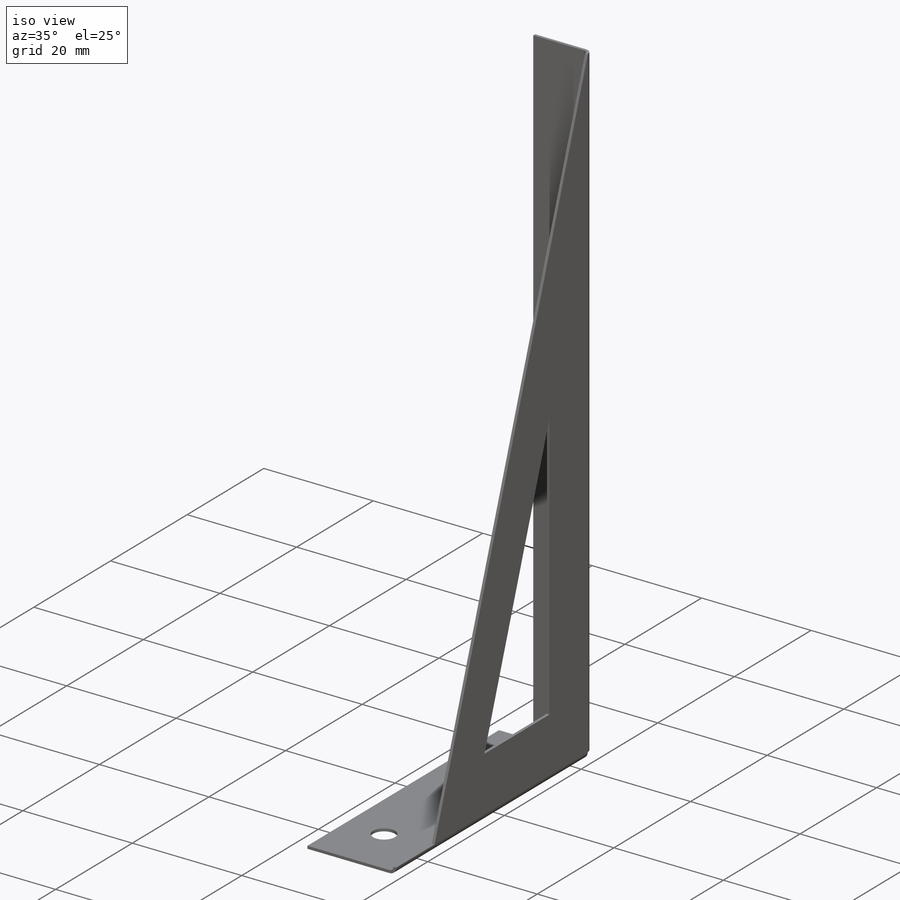
[diagram: iso view]
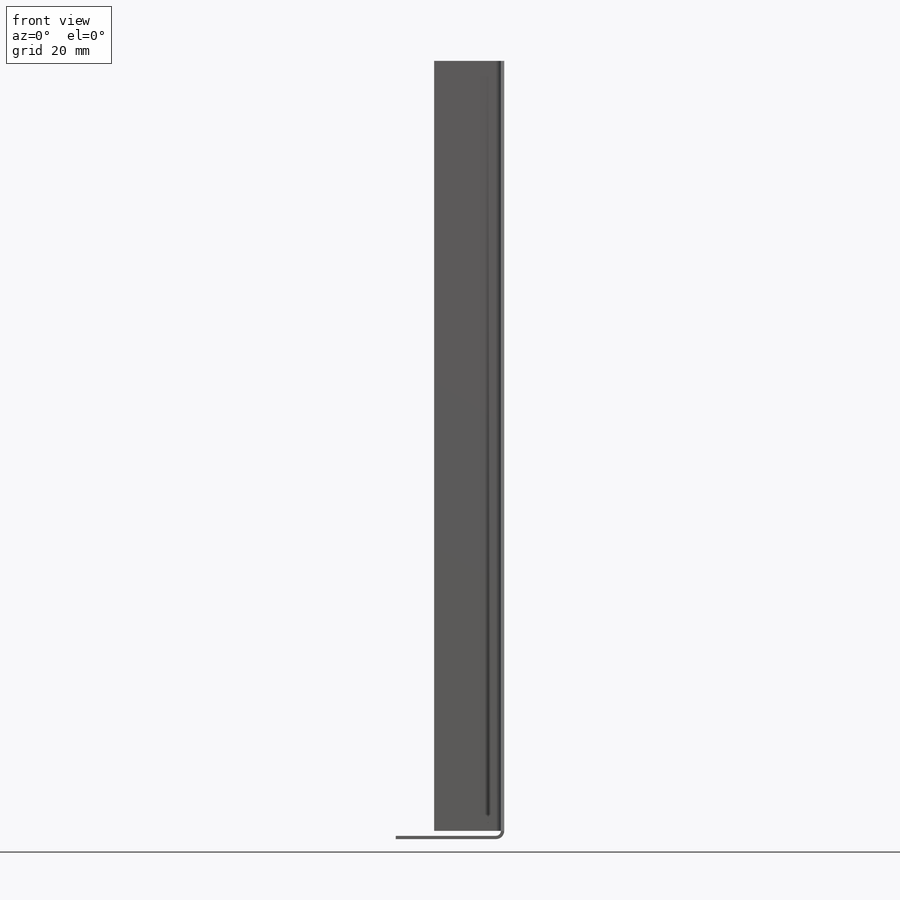
[diagram: front view]
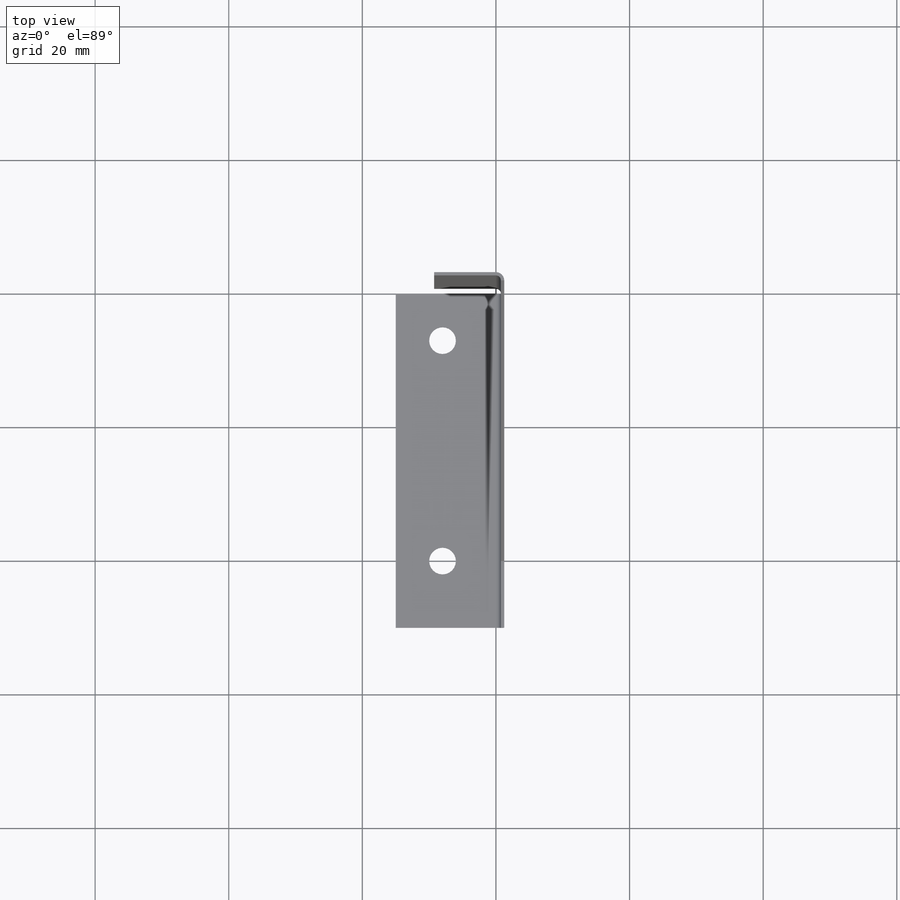
[diagram: top view]
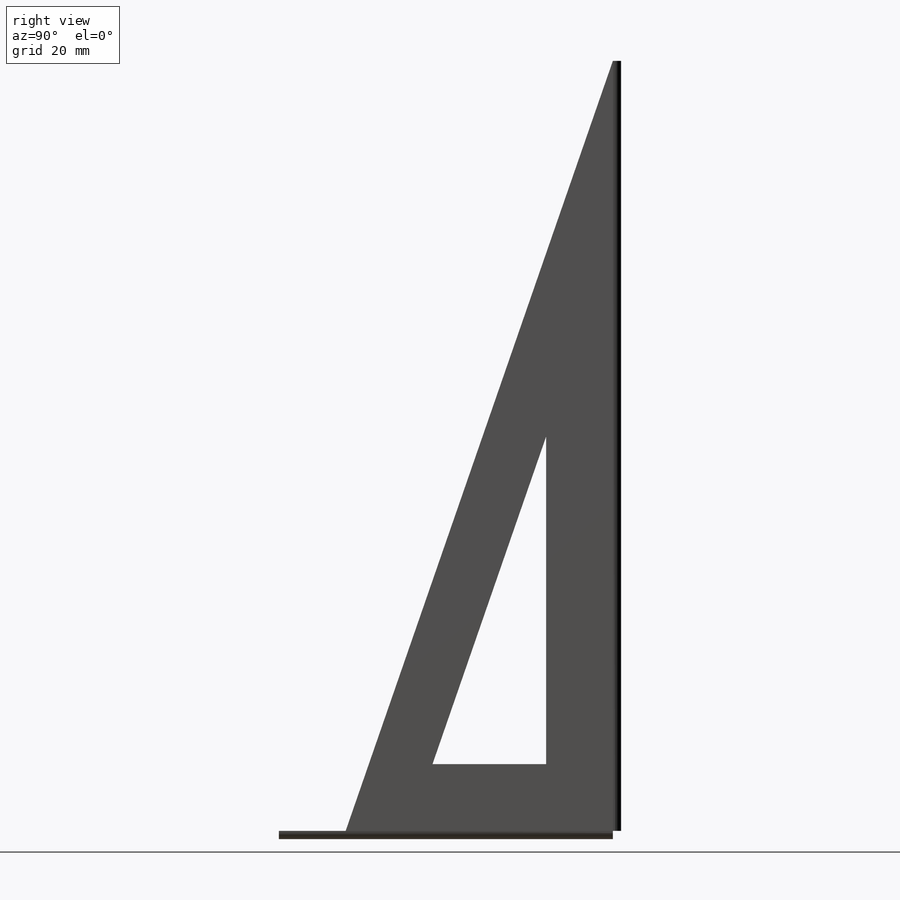
[diagram: right view]
SOLIDWORKS PART (.sldprt)
format: sldprt  version: not decoded by parser v0  size: 238,080 bytes
history: native  units: mm
features: sketch x8, sheet_metal_op x3, cut_extrude x3, material x1 + 2 further entries (+11 scaffold rows collapsed; 1 parser-record rows omitted)
feature tree (29):
  scaffold x11  (default folders/planes/origin — collapsed)
  material  "Material <not specified>"
  sketch  "Sketch2"  dims[D1=50.0mm D2=15.0mm]
  sheet_metal_op  "Sheet-Metal1"
  sheet_metal_op  "Base-Flange1"
  sketch  "Sketch18"  dims[D1=0.7366mm D2=500.0mm D3=0.0mm D6=10.0mm D7=116.0mm]
  sketch  "Sketch19"  dims[D1=10.0mm]
  cut_extrude  "Cut-Extrude1"  Depth=10mm
  sketch  "Sketch21"  dims[c1.D1=~44.248521mm c2.D1=90.0deg c2.D2=10.0mm c2.D3=49.0mm c2.D4=49.0mm c3.D1=~44.243516mm c4.D1=~2.23042deg c5.D1=49.0mm c5.D2=10.0mm c5.D3=10.0mm c5.D4=17.0mm c5.D5=~51.86521mm]
  cut_extrude  "Cut-Extrude2"  Depth=10mm
  sketch  "Sketch22"  dims[c1.D1=~5.628578mm c1.D3=4.0mm c1.D4=~9.905279mm c1.D6=4.0mm c2.D1=10.0mm c2.D2=7.0mm c2.D4=7.0mm c2.D5=7.0mm]
  cut_extrude  "Cut-Extrude3"  Depth=10mm Edge-Flange2=0
  sketch  "Sketch25"
  sheet_metal_op  "EdgeBend4"
  "Flat-Pattern1"
  sketch  "Bend-Lines1"
  sketch  "Bounding-Box1"
  parser-record x1  (decoder bookkeeping rows leaked as tree rows — omitted from the tree; the rows remain in map.json)
  "Flatten-<EdgeBend4>1"
decode coverage: 8 of 14 modeling features carry decoded parameters; 2 rows unclassified (native names shown)
note: ~ marks probable driven/reference dimensions
note: suppression state not decoded; provenance and decode notes live in map.json
